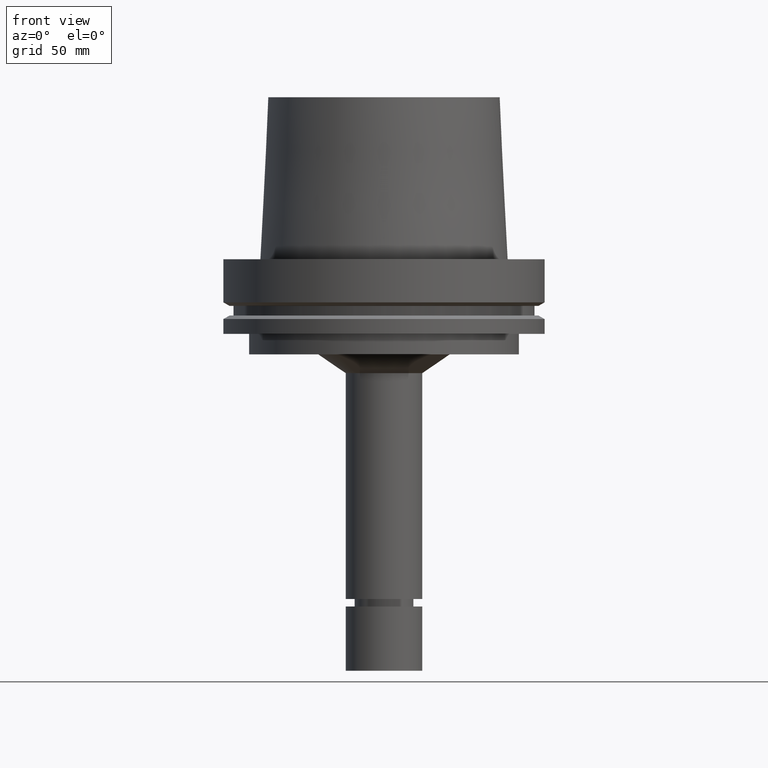
[diagram: clean part render]
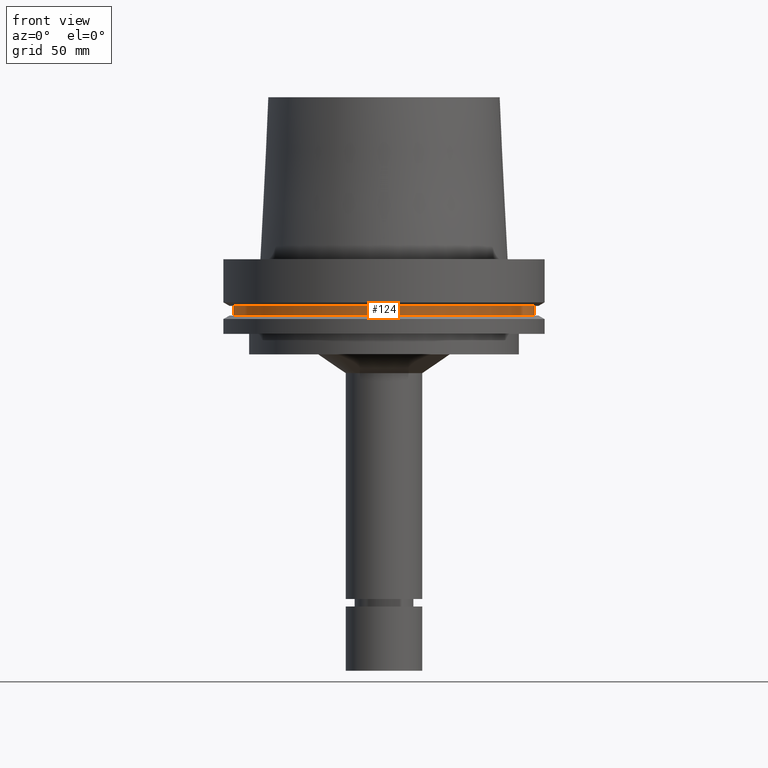
[diagram: same view with one face highlighted and labeled with its STEP entity id]
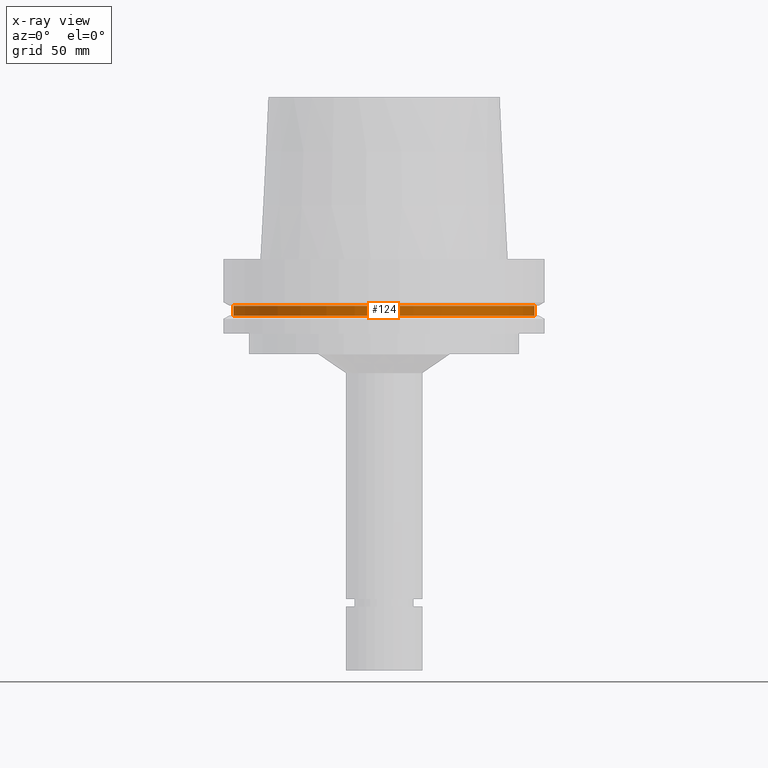
[diagram: x-ray of the same camera — body ghosted, the highlighted face saturated]
A machine part, front view. The second image highlights one B-rep face of the part: STEP entity #124.
The next image is the same camera in x-ray: the body ghosted, the highlighted face saturated — about 0% of this face is hidden behind the body in this view.
In plain terms, the highlighted cylindrical surface (bore or boss wall) has radius 58.5 mm, axis along (0, -0, -1).
Its self-contained STEP definition (entity closure, byte-faithful):
#124=ADVANCED_FACE('Unnamed[1]',(#286,#287),#288,.T.);
#162=EDGE_CURVE('Unnamed[1]',#347,#347,#348,.T.);
#176=EDGE_CURVE('Unnamed[1]',#367,#367,#368,.T.);
#286=FACE_BOUND('',#501,.T.);
#287=FACE_BOUND('',#502,.T.);
#288=CYLINDRICAL_SURFACE('',#503,58.4999999999999);
#347=VERTEX_POINT('',#577);
#348=CIRCLE('',#578,58.4999999999998);
#367=VERTEX_POINT('',#602);
#368=CIRCLE('',#603,58.5000000000001);
#501=EDGE_LOOP('',(#726));
#502=EDGE_LOOP('',(#727));
#503=AXIS2_PLACEMENT_3D('',#728,#729,#730);
#577=CARTESIAN_POINT('',(1.33945743656732E-015,58.4999999999998,-21.8749999999984));
#578=AXIS2_PLACEMENT_3D('',#796,#797,#798);
#602=CARTESIAN_POINT('',(1.10983616172739E-015,58.5,-18.1250000000017));
#603=AXIS2_PLACEMENT_3D('',#815,#816,#817);
#726=ORIENTED_EDGE('',*,*,#162,.F.);
#727=ORIENTED_EDGE('',*,*,#176,.T.);
#728=CARTESIAN_POINT('',(1.22464679914735E-015,-9.59624211599088E-015,-20.0));
#729=DIRECTION('',(6.12323399573676E-017,-7.06999605799727E-016,-1.0));
#730=DIRECTION('',(3.84640874812801E-032,1.0,-7.06999605799727E-016));
#796=CARTESIAN_POINT('',(1.33945743656731E-015,-1.09218663768639E-014,-21.8749999999983));
#797=DIRECTION('',(6.12323399573677E-017,-7.06999605799729E-016,-1.0));
#798=DIRECTION('',(3.84640874812801E-032,1.0,-7.06999605799729E-016));
#815=CARTESIAN_POINT('',(1.10983616172739E-015,-8.27061785511787E-015,-18.1250000000016));
#816=DIRECTION('',(6.12323399573676E-017,-7.06999605799726E-016,-1.0));
#817=DIRECTION('',(3.846408748128E-032,1.0,-7.06999605799726E-016));